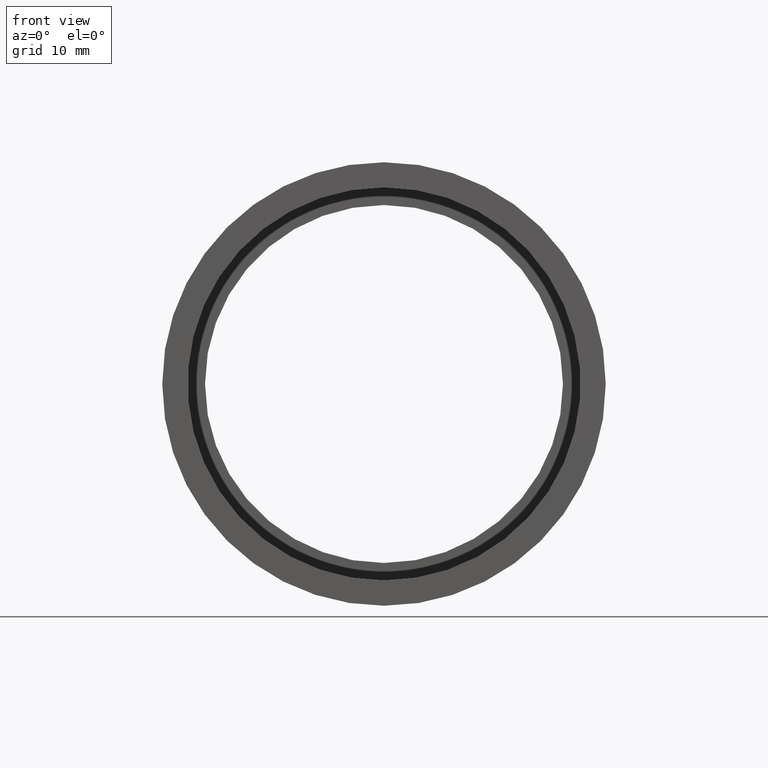
[diagram: clean part render]
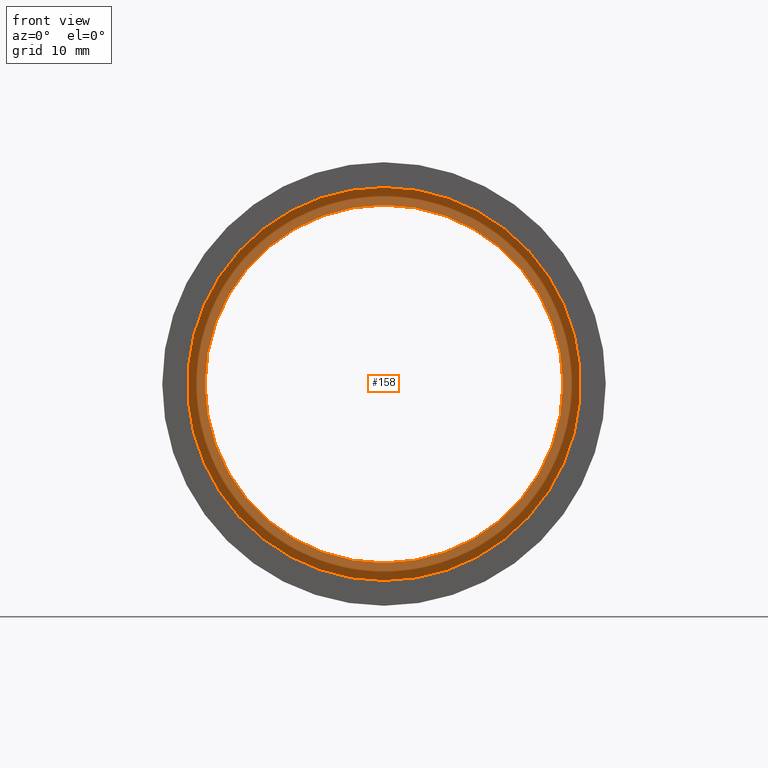
[diagram: same view with one face highlighted and labeled with its STEP entity id]
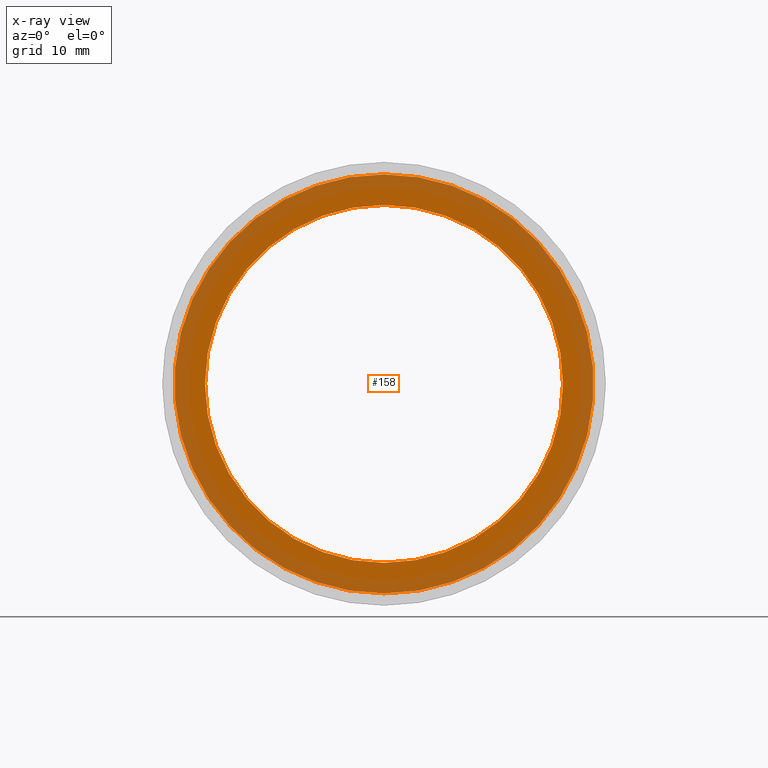
[diagram: x-ray of the same camera — body ghosted, the highlighted face saturated]
A machine part, front view. The second image highlights one B-rep face of the part: STEP entity #158.
The next image is the same camera in x-ray: the body ghosted, the highlighted face saturated — about 45% of this face is hidden behind the body in this view.
In plain terms, the highlighted planar face has unit normal (-0, 1, 0).
Its self-contained STEP definition (entity closure, byte-faithful):
#4 = VERTEX_POINT ( 'NONE', #107 ) ;
#5 = DIRECTION ( 'NONE',  ( -0.0000000000000000000, 1.000000000000000000, -0.0000000000000000000 ) ) ;
#8 = EDGE_CURVE ( 'NONE', #137, #349, #341, .T. ) ;
#15 = EDGE_CURVE ( 'NONE', #609, #4, #65, .T. ) ;
#17 = PLANE ( 'NONE',  #95 ) ;
#23 = AXIS2_PLACEMENT_3D ( 'NONE', #761, #5, #124 ) ;
#56 = CARTESIAN_POINT ( 'NONE',  ( 0.0000000000000000000, 36.09999999999999400, 24.00000000000001400 ) ) ;
#65 = CIRCLE ( 'NONE', #23, 24.00000000000001400 ) ;
#95 = AXIS2_PLACEMENT_3D ( 'NONE', #647, #513, #410 ) ;
#104 = EDGE_LOOP ( 'NONE', ( #624, #121 ) ) ;
#107 = CARTESIAN_POINT ( 'NONE',  ( 2.939152317953649500E-015, 36.09999999999999400, -24.00000000000001400 ) ) ;
#121 = ORIENTED_EDGE ( 'NONE', *, *, #350, .T. ) ;
#124 = DIRECTION ( 'NONE',  ( 0.0000000000000000000, 0.0000000000000000000, 1.000000000000000000 ) ) ;
#126 = DIRECTION ( 'NONE',  ( 0.0000000000000000000, 0.0000000000000000000, 1.000000000000000000 ) ) ;
#131 = AXIS2_PLACEMENT_3D ( 'NONE', #393, #629, #126 ) ;
#137 = VERTEX_POINT ( 'NONE', #521 ) ;
#158 = ADVANCED_FACE ( 'NONE', ( #554, #459 ), #17, .F. ) ;
#170 = CARTESIAN_POINT ( 'NONE',  ( 2.510525938252076100E-015, 36.09999999999999400, -20.50000000000001800 ) ) ;
#256 = AXIS2_PLACEMENT_3D ( 'NONE', #454, #385, #445 ) ;
#341 = CIRCLE ( 'NONE', #131, 20.50000000000001800 ) ;
#349 = VERTEX_POINT ( 'NONE', #170 ) ;
#350 = EDGE_CURVE ( 'NONE', #349, #137, #759, .T. ) ;
#385 = DIRECTION ( 'NONE',  ( -0.0000000000000000000, 1.000000000000000000, -0.0000000000000000000 ) ) ;
#393 = CARTESIAN_POINT ( 'NONE',  ( 0.0000000000000000000, 36.09999999999999400, 0.0000000000000000000 ) ) ;
#410 = DIRECTION ( 'NONE',  ( 0.0000000000000000000, 0.0000000000000000000, 1.000000000000000000 ) ) ;
#419 = CARTESIAN_POINT ( 'NONE',  ( 0.0000000000000000000, 36.09999999999999400, 0.0000000000000000000 ) ) ;
#426 = DIRECTION ( 'NONE',  ( 0.0000000000000000000, 0.0000000000000000000, 1.000000000000000000 ) ) ;
#445 = DIRECTION ( 'NONE',  ( 0.0000000000000000000, 0.0000000000000000000, 1.000000000000000000 ) ) ;
#454 = CARTESIAN_POINT ( 'NONE',  ( 0.0000000000000000000, 36.09999999999999400, 0.0000000000000000000 ) ) ;
#459 = FACE_BOUND ( 'NONE', #104, .T. ) ;
#481 = AXIS2_PLACEMENT_3D ( 'NONE', #419, #739, #426 ) ;
#513 = DIRECTION ( 'NONE',  ( -0.0000000000000000000, 1.000000000000000000, 0.0000000000000000000 ) ) ;
#521 = CARTESIAN_POINT ( 'NONE',  ( 0.0000000000000000000, 36.09999999999999400, 20.50000000000001800 ) ) ;
#529 = ORIENTED_EDGE ( 'NONE', *, *, #778, .F. ) ;
#554 = FACE_OUTER_BOUND ( 'NONE', #723, .T. ) ;
#609 = VERTEX_POINT ( 'NONE', #56 ) ;
#624 = ORIENTED_EDGE ( 'NONE', *, *, #8, .T. ) ;
#629 = DIRECTION ( 'NONE',  ( -0.0000000000000000000, 1.000000000000000000, -0.0000000000000000000 ) ) ;
#647 = CARTESIAN_POINT ( 'NONE',  ( 24.00000000000001400, 36.09999999999998000, 0.0000000000000000000 ) ) ;
#655 = ORIENTED_EDGE ( 'NONE', *, *, #15, .F. ) ;
#723 = EDGE_LOOP ( 'NONE', ( #655, #529 ) ) ;
#728 = CIRCLE ( 'NONE', #256, 24.00000000000001400 ) ;
#739 = DIRECTION ( 'NONE',  ( -0.0000000000000000000, 1.000000000000000000, -0.0000000000000000000 ) ) ;
#759 = CIRCLE ( 'NONE', #481, 20.50000000000001800 ) ;
#761 = CARTESIAN_POINT ( 'NONE',  ( 0.0000000000000000000, 36.09999999999999400, 0.0000000000000000000 ) ) ;
#778 = EDGE_CURVE ( 'NONE', #4, #609, #728, .T. ) ;